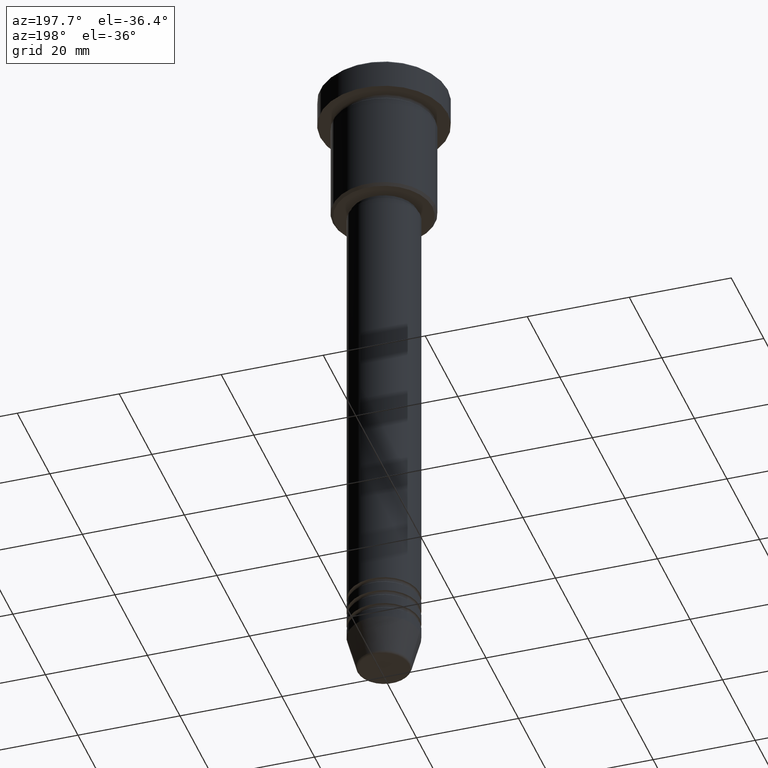
[diagram: clean part render]
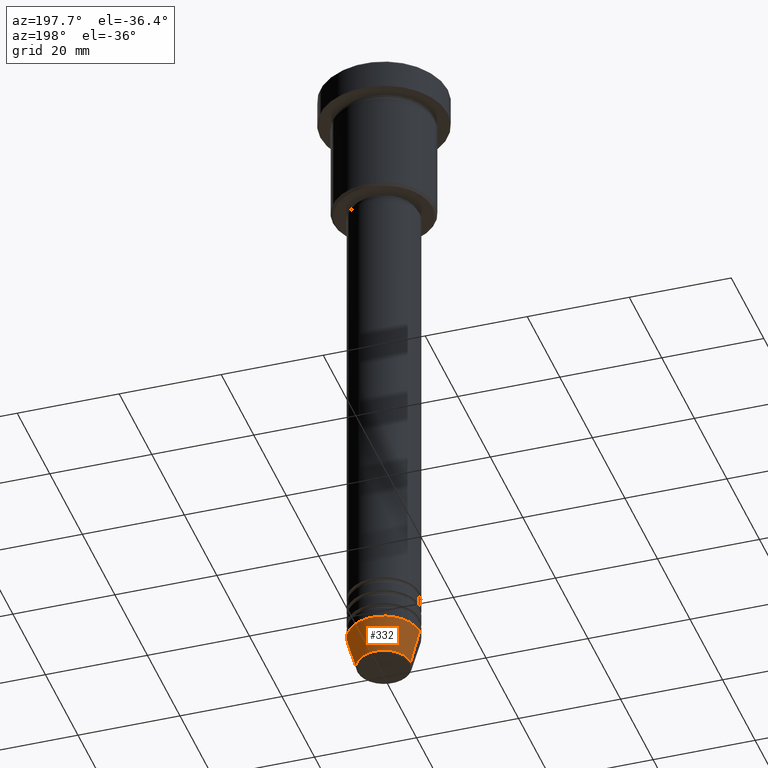
[diagram: same view with one face highlighted and labeled with its STEP entity id]
A machine part, auxiliary view. The second image highlights one B-rep face of the part: STEP entity #332.
In plain terms, the highlighted conical surface has half-angle 15 deg.
Its self-contained STEP definition (entity closure, byte-faithful):
#27 = EDGE_CURVE ( 'NONE', #1085, #86, #996, .T. ) ;
#86 = VERTEX_POINT ( 'NONE', #1105 ) ;
#126 = CARTESIAN_POINT ( 'NONE',  ( 0.000000000000000000, 0.000000000000000000, -125.0000000000000000 ) ) ;
#251 = EDGE_CURVE ( 'NONE', #1085, #384, #907, .T. ) ;
#332 = ADVANCED_FACE ( 'NONE', ( #856 ), #1004, .T. ) ;
#343 = VECTOR ( 'NONE', #809, 1000.000000000000000 ) ;
#384 = VERTEX_POINT ( 'NONE', #534 ) ;
#389 = DIRECTION ( 'NONE',  ( -0.000000000000000000, -0.000000000000000000, 1.000000000000000000 ) ) ;
#416 = DIRECTION ( 'NONE',  ( 1.000000000000000000, 0.000000000000000000, 0.000000000000000000 ) ) ;
#444 = VECTOR ( 'NONE', #802, 1000.000000000000000 ) ;
#482 = CARTESIAN_POINT ( 'NONE',  ( 5.223655072137191269, 0.000000000000000000, -131.6294095225512422 ) ) ;
#497 = DIRECTION ( 'NONE',  ( -0.000000000000000000, -0.000000000000000000, 1.000000000000000000 ) ) ;
#531 = LINE ( 'NONE', #619, #343 ) ;
#534 = CARTESIAN_POINT ( 'NONE',  ( -5.223655072137191269, 7.484830028987061160E-16, -131.6294095225512422 ) ) ;
#571 = ORIENTED_EDGE ( 'NONE', *, *, #905, .T. ) ;
#595 = DIRECTION ( 'NONE',  ( -0.000000000000000000, -0.000000000000000000, 1.000000000000000000 ) ) ;
#598 = EDGE_CURVE ( 'NONE', #86, #612, #1064, .T. ) ;
#604 = ORIENTED_EDGE ( 'NONE', *, *, #27, .F. ) ;
#612 = VERTEX_POINT ( 'NONE', #1106 ) ;
#619 = CARTESIAN_POINT ( 'NONE',  ( -7.000000000000000000, 8.572527594031473190E-16, -125.0000000000000000 ) ) ;
#631 = CARTESIAN_POINT ( 'NONE',  ( 7.000000000000000000, 0.000000000000000000, -125.0000000000000000 ) ) ;
#707 = CARTESIAN_POINT ( 'NONE',  ( 0.000000000000000000, 0.000000000000000000, -125.0000000000000000 ) ) ;
#802 = DIRECTION ( 'NONE',  ( 0.2588190451025214056, 0.000000000000000000, 0.9659258262890680902 ) ) ;
#809 = DIRECTION ( 'NONE',  ( -0.2588190451025214056, 3.169619151431772953E-17, 0.9659258262890680902 ) ) ;
#827 = AXIS2_PLACEMENT_3D ( 'NONE', #126, #389, #1116 ) ;
#856 = FACE_OUTER_BOUND ( 'NONE', #1182, .T. ) ;
#895 = ORIENTED_EDGE ( 'NONE', *, *, #598, .F. ) ;
#904 = DIRECTION ( 'NONE',  ( 1.000000000000000000, 0.000000000000000000, 0.000000000000000000 ) ) ;
#905 = EDGE_CURVE ( 'NONE', #384, #612, #531, .T. ) ;
#907 = CIRCLE ( 'NONE', #923, 5.223655072137191269 ) ;
#923 = AXIS2_PLACEMENT_3D ( 'NONE', #1141, #595, #416 ) ;
#966 = AXIS2_PLACEMENT_3D ( 'NONE', #707, #497, #904 ) ;
#993 = ORIENTED_EDGE ( 'NONE', *, *, #251, .T. ) ;
#996 = LINE ( 'NONE', #631, #444 ) ;
#1004 = CONICAL_SURFACE ( 'NONE', #966, 7.000000000000000000, 0.2617993877991501295 ) ;
#1064 = CIRCLE ( 'NONE', #827, 7.000000000000000000 ) ;
#1085 = VERTEX_POINT ( 'NONE', #482 ) ;
#1105 = CARTESIAN_POINT ( 'NONE',  ( 7.000000000000000000, 0.000000000000000000, -125.0000000000000000 ) ) ;
#1106 = CARTESIAN_POINT ( 'NONE',  ( -7.000000000000000000, 8.572527594031473190E-16, -125.0000000000000000 ) ) ;
#1116 = DIRECTION ( 'NONE',  ( 1.000000000000000000, 0.000000000000000000, 0.000000000000000000 ) ) ;
#1141 = CARTESIAN_POINT ( 'NONE',  ( 0.000000000000000000, 0.000000000000000000, -131.6294095225512422 ) ) ;
#1182 = EDGE_LOOP ( 'NONE', ( #993, #571, #895, #604 ) ) ;